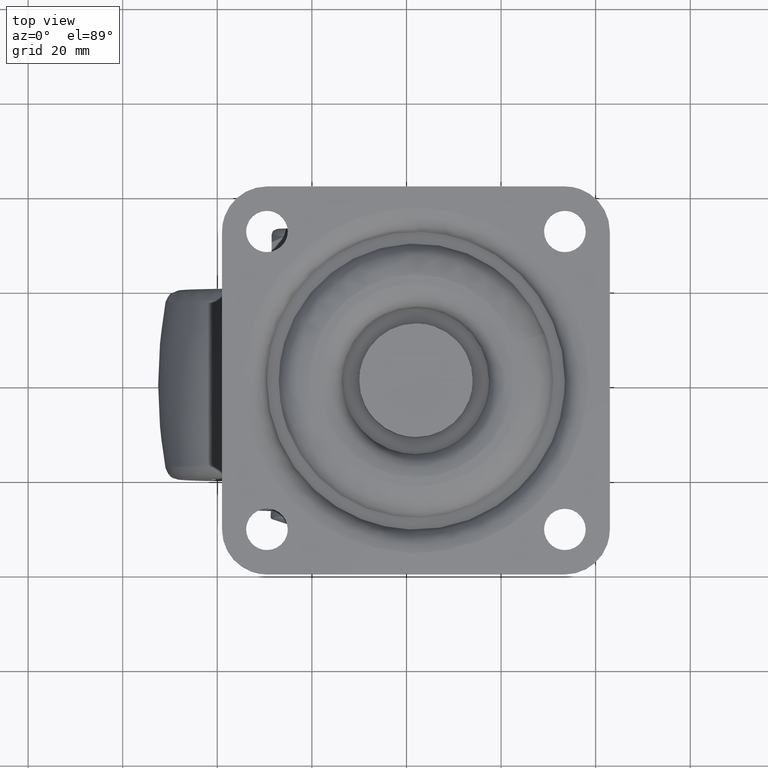
[diagram: clean part render]
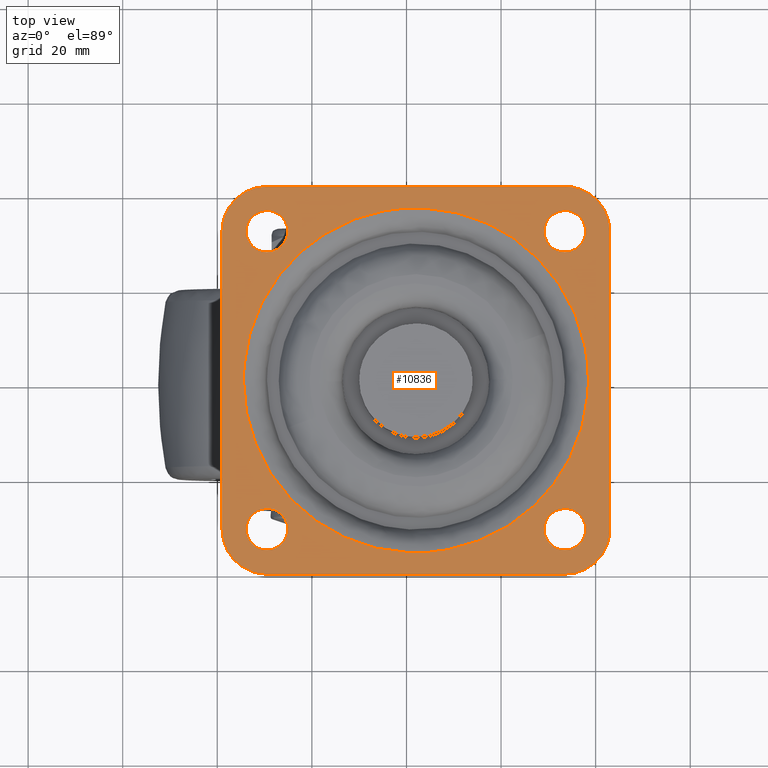
[diagram: same view with one face highlighted and labeled with its STEP entity id]
A machine part, top view. The second image highlights one B-rep face of the part: STEP entity #10836.
In plain terms, the highlighted face is a freeform B-spline surface patch.
Its self-contained STEP definition (entity closure, byte-faithful):
#9504=CARTESIAN_POINT('',(-6.527402651635682,28.255979422633239,57.500000000000007));
#9505=VERTEX_POINT('',#9504);
#9511=CARTESIAN_POINT('',(-5.099999900000237,31.500000000000000,57.500000000000000));
#9512=VERTEX_POINT('',#9511);
#9513=CARTESIAN_POINT('',(-6.527402651635682,28.255979422633239,57.500000000000007));
#9514=CARTESIAN_POINT('',(-6.331294640377301,28.435661510493610,57.499999999999972));
#9515=CARTESIAN_POINT('',(-5.907538056426722,28.901234727286791,57.500000000000000));
#9516=CARTESIAN_POINT('',(-5.476054463853685,29.646779759349990,57.500000000000071));
#9517=CARTESIAN_POINT('',(-5.172922856445772,30.550104541011748,57.499999999999829));
#9518=CARTESIAN_POINT('',(-5.099897560702185,31.139013330310519,57.500000000000057));
#9519=CARTESIAN_POINT('',(-5.099999900000237,31.500000000000000,57.500000000000000));
#9520=B_SPLINE_CURVE_WITH_KNOTS('',3,(#9513,#9514,#9515,#9516,#9517,#9518,#9519),.UNSPECIFIED.,.F.,.U.,(4,1,1,1,4),(0.000000051741890,0.797946363962236,1.880850459247144,2.564829295802321,3.647763770706989),.UNSPECIFIED.);
#9521=EDGE_CURVE('',#9505,#9512,#9520,.T.);
#9523=CARTESIAN_POINT('',(-9.500001652599385,35.900000099999687,57.500000000000007));
#9524=VERTEX_POINT('',#9523);
#9525=CARTESIAN_POINT('',(-5.099999900000237,31.500000000000000,57.500000000000000));
#9526=CARTESIAN_POINT('',(-5.099960108318770,31.805979140615388,57.500000000000057));
#9527=CARTESIAN_POINT('',(-5.164085256940187,32.417916385061382,57.500000000000057));
#9528=CARTESIAN_POINT('',(-5.475977597489463,33.382183380350618,57.500000000000028));
#9529=CARTESIAN_POINT('',(-6.038119762492743,34.294515202237591,57.499999999999787));
#9530=CARTESIAN_POINT('',(-6.878718447212923,35.094815477841607,57.500000000000327));
#9531=CARTESIAN_POINT('',(-8.024383747049235,35.725460889826692,57.499999999999801));
#9532=CARTESIAN_POINT('',(-8.959973545698887,35.900474387912098,57.500000000000099));
#9533=CARTESIAN_POINT('',(-9.500001652599385,35.900000099999687,57.500000000000007));
#9534=B_SPLINE_CURVE_WITH_KNOTS('',3,(#9525,#9526,#9527,#9528,#9529,#9530,#9531,#9532,#9533),.UNSPECIFIED.,.F.,.U.,(4,1,1,1,1,1,4),(0.000000175198451,0.917936263844392,1.835880449769610,3.023840432684590,4.103695786229096,5.291655147283606,6.911548293186638),.UNSPECIFIED.);
#9535=EDGE_CURVE('',#9512,#9524,#9534,.T.);
#9537=CARTESIAN_POINT('',(-12.472597348364779,34.744020577366761,57.500000000000007));
#9538=VERTEX_POINT('',#9537);
#9539=CARTESIAN_POINT('',(-9.500001652599385,35.900000099999687,57.500000000000007));
#9540=CARTESIAN_POINT('',(-9.805981147162260,35.900036854611727,57.499999999999993));
#9541=CARTESIAN_POINT('',(-10.451922533639070,35.832371503604193,57.499999999999972));
#9542=CARTESIAN_POINT('',(-11.490040430876730,35.483245104056628,57.500000000000043));
#9543=CARTESIAN_POINT('',(-12.146849655788129,35.042745122781888,57.500000000000057));
#9544=CARTESIAN_POINT('',(-12.472597348364779,34.744020577366761,57.500000000000007));
#9545=B_SPLINE_CURVE_WITH_KNOTS('',3,(#9539,#9540,#9541,#9542,#9543,#9544),.UNSPECIFIED.,.F.,.U.,(4,1,1,4),(0.000000019697054,0.917954336076404,1.937902899553214,3.263837451148346),.UNSPECIFIED.);
#9546=EDGE_CURVE('',#9524,#9538,#9545,.T.);
#9587=CARTESIAN_POINT('',(-13.900000100000231,31.500000000000000,57.500000000000000));
#9588=VERTEX_POINT('',#9587);
#9589=CARTESIAN_POINT('',(-12.472597348364779,34.744020577366761,57.500000000000007));
#9590=CARTESIAN_POINT('',(-12.837067715766420,34.410513536206643,57.500000000000121));
#9591=CARTESIAN_POINT('',(-13.262257174187020,33.862521040809632,57.499999999999879));
#9592=CARTESIAN_POINT('',(-13.767413569487641,32.753636528817999,57.500000000000092));
#9593=CARTESIAN_POINT('',(-13.900492629213110,32.032064973073183,57.499999999999787));
#9594=CARTESIAN_POINT('',(-13.900000100000231,31.500000000000000,57.500000000000000));
#9595=B_SPLINE_CURVE_WITH_KNOTS('',3,(#9589,#9590,#9591,#9592,#9593,#9594),.UNSPECIFIED.,.F.,.U.,(4,1,1,4),(0.000000051744217,1.481921811847685,2.051850085721132,3.647763770706988),.UNSPECIFIED.);
#9596=EDGE_CURVE('',#9538,#9588,#9595,.T.);
#9598=CARTESIAN_POINT('',(-9.499998347401077,27.099999900000309,57.500000000000007));
#9599=VERTEX_POINT('',#9598);
#9600=CARTESIAN_POINT('',(-13.900000100000231,31.500000000000000,57.500000000000000));
#9601=CARTESIAN_POINT('',(-13.900038508210120,31.194022359299819,57.499999999999957));
#9602=CARTESIAN_POINT('',(-13.832176452605850,30.546073037396081,57.500000000000078));
#9603=CARTESIAN_POINT('',(-13.531105476227150,29.653161362864829,57.499999999999879));
#9604=CARTESIAN_POINT('',(-12.982609549140021,28.737812223937802,57.500000000000163));
#9605=CARTESIAN_POINT('',(-12.300768018614860,28.056010940166331,57.500000000000000));
#9606=CARTESIAN_POINT('',(-11.427814339756869,27.510761760326780,57.500000000000149));
#9607=CARTESIAN_POINT('',(-10.543908682954539,27.182215160884091,57.499999999999282));
#9608=CARTESIAN_POINT('',(-9.841972478193476,27.099939959551140,57.500000000000639));
#9609=CARTESIAN_POINT('',(-9.499998347401077,27.099999900000309,57.500000000000007));
#9610=B_SPLINE_CURVE_WITH_KNOTS('',3,(#9600,#9601,#9602,#9603,#9604,#9605,#9606,#9607,#9608,#9609),.UNSPECIFIED.,.F.,.U.,(4,1,1,1,1,1,1,4),(0.000000175201535,0.917936263847681,1.943875115740609,2.807852763743806,4.103695786231384,4.805674773368981,5.885628581665647,6.911548293186580),.UNSPECIFIED.);
#9611=EDGE_CURVE('',#9588,#9599,#9610,.T.);
#9613=CARTESIAN_POINT('',(-9.499998347401077,27.099999900000309,57.500000000000007));
#9614=CARTESIAN_POINT('',(-9.194018285397160,27.099954732530989,57.499999999999957));
#9615=CARTESIAN_POINT('',(-8.616089572026731,27.160551807304980,57.500000000000050));
#9616=CARTESIAN_POINT('',(-7.572635545548788,27.484704218586799,57.499999999999972));
#9617=CARTESIAN_POINT('',(-6.903187015172041,27.911148581364468,57.500000000000057));
#9618=CARTESIAN_POINT('',(-6.527402651635682,28.255979422633239,57.500000000000007));
#9619=B_SPLINE_CURVE_WITH_KNOTS('',3,(#9613,#9614,#9615,#9616,#9617,#9618),.UNSPECIFIED.,.F.,.U.,(4,1,1,4),(0.000000019698521,0.917954336077539,1.733913206903915,3.263837451148340),.UNSPECIFIED.);
#9620=EDGE_CURVE('',#9599,#9505,#9619,.T.);
#9708=CARTESIAN_POINT('',(-6.527402651635683,-34.744020577366761,57.500000000000007));
#9709=VERTEX_POINT('',#9708);
#9715=CARTESIAN_POINT('',(-5.099999900000237,-31.500000000000000,57.500000000000000));
#9716=VERTEX_POINT('',#9715);
#9717=CARTESIAN_POINT('',(-6.527402651635683,-34.744020577366761,57.500000000000007));
#9718=CARTESIAN_POINT('',(-6.134825883884829,-34.384902397453651,57.500000000000107));
#9719=CARTESIAN_POINT('',(-5.657763765728388,-33.753099496375853,57.500000000000000));
#9720=CARTESIAN_POINT('',(-5.202754979582625,-32.620801731992273,57.499999999999957));
#9721=CARTESIAN_POINT('',(-5.099824440606160,-31.936993126831371,57.499999999999737));
#9722=CARTESIAN_POINT('',(-5.099999900000237,-31.500000000000000,57.500000000000000));
#9723=B_SPLINE_CURVE_WITH_KNOTS('',3,(#9717,#9718,#9719,#9720,#9721,#9722),.UNSPECIFIED.,.F.,.U.,(4,1,1,4),(0.000000051739282,1.595913736783466,2.336845261510963,3.647763770706998),.UNSPECIFIED.);
#9724=EDGE_CURVE('',#9709,#9716,#9723,.T.);
#9726=CARTESIAN_POINT('',(-9.500001652599385,-27.099999900000309,57.500000000000007));
#9727=VERTEX_POINT('',#9726);
#9728=CARTESIAN_POINT('',(-5.099999900000237,-31.500000000000000,57.500000000000000));
#9729=CARTESIAN_POINT('',(-5.099557597183056,-30.959958248699291,57.499999999999723));
#9730=CARTESIAN_POINT('',(-5.237511275531254,-30.222340694124661,57.500000000000291));
#9731=CARTESIAN_POINT('',(-5.664057894249466,-29.306509450157780,57.499999999999780));
#9732=CARTESIAN_POINT('',(-6.130115315175477,-28.617982032846129,57.500000000000277));
#9733=CARTESIAN_POINT('',(-6.826203886798327,-27.955228875915470,57.499999999999808));
#9734=CARTESIAN_POINT('',(-7.718012176028394,-27.435494138737500,57.499999999999972));
#9735=CARTESIAN_POINT('',(-8.618061325491478,-27.156450676682368,57.500000000000057));
#9736=CARTESIAN_POINT('',(-9.230024256948619,-27.099982209507559,57.500000000000007));
#9737=CARTESIAN_POINT('',(-9.500001652599385,-27.099999900000309,57.500000000000007));
#9738=B_SPLINE_CURVE_WITH_KNOTS('',3,(#9728,#9729,#9730,#9731,#9732,#9733,#9734,#9735,#9736,#9737),.UNSPECIFIED.,.F.,.U.,(4,1,1,1,1,1,1,4),(0.000000175196322,1.619892753824357,2.213869588178089,3.023840432683744,4.103695786228720,5.075667376940040,6.101607574971982,6.911548293186634),.UNSPECIFIED.);
#9739=EDGE_CURVE('',#9716,#9727,#9738,.T.);
#9741=CARTESIAN_POINT('',(-12.472597348364779,-28.255979422633239,57.500000000000007));
#9742=VERTEX_POINT('',#9741);
#9743=CARTESIAN_POINT('',(-9.500001652599385,-27.099999900000309,57.500000000000007));
#9744=CARTESIAN_POINT('',(-9.805978879384542,-27.099959323252929,57.499999999999979));
#9745=CARTESIAN_POINT('',(-10.383922556173800,-27.160533726234078,57.500000000000043));
#9746=CARTESIAN_POINT('',(-11.427335526212181,-27.484747459258489,57.499999999999957));
#9747=CARTESIAN_POINT('',(-12.096840325642470,-27.911109214048899,57.500000000000121));
#9748=CARTESIAN_POINT('',(-12.472597348364779,-28.255979422633239,57.500000000000007));
#9749=B_SPLINE_CURVE_WITH_KNOTS('',3,(#9743,#9744,#9745,#9746,#9747,#9748),.UNSPECIFIED.,.F.,.U.,(4,1,1,4),(0.000000019698709,0.917954336077656,1.733913206903981,3.263837451148342),.UNSPECIFIED.);
#9750=EDGE_CURVE('',#9727,#9742,#9749,.T.);
#9790=CARTESIAN_POINT('',(-13.900000100000231,-31.500000000000000,57.500000000000000));
#9791=VERTEX_POINT('',#9790);
#9792=CARTESIAN_POINT('',(-12.472597348364779,-28.255979422633239,57.500000000000007));
#9793=CARTESIAN_POINT('',(-12.696742629631290,-28.461314498516860,57.500000000000007));
#9794=CARTESIAN_POINT('',(-13.127571519996071,-28.947269724742029,57.500000000000007));
#9795=CARTESIAN_POINT('',(-13.544166108726710,-29.700476955939301,57.499999999999979));
#9796=CARTESIAN_POINT('',(-13.829452768861040,-30.569103800363770,57.500000000000199));
#9797=CARTESIAN_POINT('',(-13.900081831135839,-31.139015745930880,57.500000000000007));
#9798=CARTESIAN_POINT('',(-13.900000100000231,-31.500000000000000,57.500000000000000));
#9799=B_SPLINE_CURVE_WITH_KNOTS('',3,(#9792,#9793,#9794,#9795,#9796,#9797,#9798),.UNSPECIFIED.,.F.,.U.,(4,1,1,1,4),(0.000000051740050,0.911940981480604,1.937862857151539,2.564829295801952,3.647763770706989),.UNSPECIFIED.);
#9800=EDGE_CURVE('',#9742,#9791,#9799,.T.);
#9802=CARTESIAN_POINT('',(-9.499998347401073,-35.900000099999687,57.500000000000007));
#9803=VERTEX_POINT('',#9802);
#9804=CARTESIAN_POINT('',(-13.900000100000231,-31.500000000000000,57.500000000000000));
#9805=CARTESIAN_POINT('',(-13.900046339982270,-31.805979913364339,57.499999999999929));
#9806=CARTESIAN_POINT('',(-13.835912382310140,-32.417919312008600,57.500000000000149));
#9807=CARTESIAN_POINT('',(-13.546264531920770,-33.313285828740810,57.500000000000021));
#9808=CARTESIAN_POINT('',(-13.108548323292149,-34.064229105862559,57.499999999999730));
#9809=CARTESIAN_POINT('',(-12.526553293370551,-34.730612398474982,57.500000000000547));
#9810=CARTESIAN_POINT('',(-11.798534928594931,-35.298867341410570,57.499999999999467));
#9811=CARTESIAN_POINT('',(-10.759796989444251,-35.774640968031797,57.500000000000298));
#9812=CARTESIAN_POINT('',(-9.949986266179723,-35.900222447529643,57.499999999999943));
#9813=CARTESIAN_POINT('',(-9.499998347401073,-35.900000099999687,57.500000000000007));
#9814=B_SPLINE_CURVE_WITH_KNOTS('',3,(#9804,#9805,#9806,#9807,#9808,#9809,#9810,#9811,#9812,#9813),.UNSPECIFIED.,.F.,.U.,(4,1,1,1,1,1,1,4),(0.000000175198956,0.917936263844310,1.835880449768899,2.807852763740702,3.509717060336606,4.481693944132966,5.561647752064996,6.911548293186637),.UNSPECIFIED.);
#9815=EDGE_CURVE('',#9791,#9803,#9814,.T.);
#9817=CARTESIAN_POINT('',(-9.499998347401073,-35.900000099999687,57.500000000000007));
#9818=CARTESIAN_POINT('',(-9.058018572570415,-35.900168918899112,57.499999999999979));
#9819=CARTESIAN_POINT('',(-8.276167814063836,-35.781208861819152,57.500000000000142));
#9820=CARTESIAN_POINT('',(-7.274921927574757,-35.337268851585797,57.499999999999858));
#9821=CARTESIAN_POINT('',(-6.752967987963054,-34.950763000156847,57.500000000000213));
#9822=CARTESIAN_POINT('',(-6.527402651635683,-34.744020577366761,57.500000000000007));
#9823=B_SPLINE_CURVE_WITH_KNOTS('',3,(#9817,#9818,#9819,#9820,#9821,#9822),.UNSPECIFIED.,.F.,.U.,(4,1,1,4),(0.000000019698297,1.325934571258695,2.345883134763110,3.263837451148344),.UNSPECIFIED.);
#9824=EDGE_CURVE('',#9803,#9709,#9823,.T.);
#9912=CARTESIAN_POINT('',(56.472597348364552,-34.744020577366769,57.500000000000000));
#9913=VERTEX_POINT('',#9912);
#9919=CARTESIAN_POINT('',(57.900000100000000,-31.500000000000000,57.500000000000000));
#9920=VERTEX_POINT('',#9919);
#9921=CARTESIAN_POINT('',(56.472597348364552,-34.744020577366769,57.500000000000000));
#9922=CARTESIAN_POINT('',(56.738807202030443,-34.500214349525443,57.499999999999872));
#9923=CARTESIAN_POINT('',(57.160932837396579,-34.004824190541228,57.500000000000249));
#9924=CARTESIAN_POINT('',(57.606562842658882,-33.160819330669703,57.499999999999773));
#9925=CARTESIAN_POINT('',(57.848182040586678,-32.335938885675127,57.500000000000092));
#9926=CARTESIAN_POINT('',(57.900021573483230,-31.765981074456281,57.500000000000043));
#9927=CARTESIAN_POINT('',(57.900000100000000,-31.500000000000000,57.500000000000000));
#9928=B_SPLINE_CURVE_WITH_KNOTS('',3,(#9921,#9922,#9923,#9924,#9925,#9926,#9927),.UNSPECIFIED.,.F.,.U.,(4,1,1,1,4),(0.000000051738970,1.082934526687665,1.937862857152270,2.849817458499780,3.647763770706972),.UNSPECIFIED.);
#9929=EDGE_CURVE('',#9913,#9920,#9928,.T.);
#9931=CARTESIAN_POINT('',(53.499998347400840,-27.099999900000309,57.500000000000007));
#9932=VERTEX_POINT('',#9931);
#9933=CARTESIAN_POINT('',(57.900000100000000,-31.500000000000000,57.500000000000000));
#9934=CARTESIAN_POINT('',(57.900045816502143,-31.194020118935729,57.499999999999993));
#9935=CARTESIAN_POINT('',(57.835917910283932,-30.582078320998040,57.500000000000092));
#9936=CARTESIAN_POINT('',(57.574065703870168,-29.772851344300609,57.499999999999872));
#9937=CARTESIAN_POINT('',(57.100705271054167,-28.899788898169760,57.500000000000362));
#9938=CARTESIAN_POINT('',(56.432646252619278,-28.153592631767459,57.499999999999332));
#9939=CARTESIAN_POINT('',(55.526019848085603,-27.555984136205382,57.500000000000952));
#9940=CARTESIAN_POINT('',(54.579868066558191,-27.191026462654332,57.499999999999773));
#9941=CARTESIAN_POINT('',(53.877979404810937,-27.099883420977658,57.500000000000043));
#9942=CARTESIAN_POINT('',(53.499998347400840,-27.099999900000309,57.500000000000007));
#9943=B_SPLINE_CURVE_WITH_KNOTS('',3,(#9933,#9934,#9935,#9936,#9937,#9938,#9939,#9940,#9941,#9942),.UNSPECIFIED.,.F.,.U.,(4,1,1,1,1,1,1,4),(0.000000175198252,0.917936263844547,1.835880449769727,2.537847296095109,3.887708627484542,4.805674773366144,5.777636256844786,6.911548293186641),.UNSPECIFIED.);
#9944=EDGE_CURVE('',#9920,#9932,#9943,.T.);
#9946=CARTESIAN_POINT('',(50.527402651635448,-28.255979422633239,57.500000000000007));
#9947=VERTEX_POINT('',#9946);
#9948=CARTESIAN_POINT('',(53.499998347400840,-27.099999900000309,57.500000000000007));
#9949=CARTESIAN_POINT('',(53.126008796483532,-27.099875764320782,57.500000000000050));
#9950=CARTESIAN_POINT('',(52.548127661693123,-27.174179613081868,57.499999999999993));
#9951=CARTESIAN_POINT('',(51.514432882039181,-27.521827589460020,57.500000000000078));
#9952=CARTESIAN_POINT('',(50.903167895852903,-27.911107979100361,57.499999999999950));
#9953=CARTESIAN_POINT('',(50.527402651635448,-28.255979422633239,57.500000000000007));
#9954=B_SPLINE_CURVE_WITH_KNOTS('',3,(#9948,#9949,#9950,#9951,#9952,#9953),.UNSPECIFIED.,.F.,.U.,(4,1,1,4),(0.000000019700186,1.121944440149901,1.733913206904668,3.263837451148310),.UNSPECIFIED.);
#9955=EDGE_CURVE('',#9932,#9947,#9954,.T.);
#9995=CARTESIAN_POINT('',(49.099999900000000,-31.500000000000000,57.500000000000000));
#9996=VERTEX_POINT('',#9995);
#9997=CARTESIAN_POINT('',(50.527402651635448,-28.255979422633239,57.500000000000007));
#9998=CARTESIAN_POINT('',(50.261198521250982,-28.499793785990001,57.500000000000007));
#9999=CARTESIAN_POINT('',(49.876315201401113,-28.951474278974491,57.500000000000028));
#10000=CARTESIAN_POINT('',(49.461305597709540,-29.701891549309671,57.499999999999993));
#10001=CARTESIAN_POINT('',(49.177607561903329,-30.512118395695669,57.500000000000021));
#10002=CARTESIAN_POINT('',(49.099903004929452,-31.139014873224522,57.500000000000028));
#10003=CARTESIAN_POINT('',(49.099999900000000,-31.500000000000000,57.500000000000000));
#10004=B_SPLINE_CURVE_WITH_KNOTS('',3,(#9997,#9998,#9999,#10000,#10001,#10002,#10003),.UNSPECIFIED.,.F.,.U.,(4,1,1,1,4),(0.000000051739248,1.082934526687299,1.766913363232705,2.564829295801737,3.647763770707020),.UNSPECIFIED.);
#10005=EDGE_CURVE('',#9947,#9996,#10004,.T.);
#10007=CARTESIAN_POINT('',(53.500001652599160,-35.900000099999687,57.500000000000000));
#10008=VERTEX_POINT('',#10007);
#10009=CARTESIAN_POINT('',(49.099999900000000,-31.500000000000000,57.500000000000000));
#10010=CARTESIAN_POINT('',(49.099845914160277,-31.913984795733771,57.499999999999893));
#10011=CARTESIAN_POINT('',(49.197261107594763,-32.597843507224852,57.500000000000099));
#10012=CARTESIAN_POINT('',(49.534368682123691,-33.455823668517702,57.499999999999893));
#10013=CARTESIAN_POINT('',(50.031211769289357,-34.273744304837450,57.500000000000107));
#10014=CARTESIAN_POINT('',(50.799073811221056,-35.051089873964848,57.499999999999822));
#10015=CARTESIAN_POINT('',(52.024375648844902,-35.725453804875897,57.500000000000043));
#10016=CARTESIAN_POINT('',(52.959982209665483,-35.900472784731242,57.499999999999957));
#10017=CARTESIAN_POINT('',(53.500001652599160,-35.900000099999687,57.500000000000000));
#10018=B_SPLINE_CURVE_WITH_KNOTS('',3,(#10009,#10010,#10011,#10012,#10013,#10014,#10015,#10016,#10017),.UNSPECIFIED.,.F.,.U.,(4,1,1,1,1,1,4),(0.000000175204129,1.241908470281501,2.051870935937797,2.753822092302106,4.103695786231374,5.291655147285097,6.911548293186583),.UNSPECIFIED.);
#10019=EDGE_CURVE('',#9996,#10008,#10018,.T.);
#10021=CARTESIAN_POINT('',(53.500001652599160,-35.900000099999687,57.500000000000000));
#10022=CARTESIAN_POINT('',(53.941993552615557,-35.900221045391767,57.499999999999922));
#10023=CARTESIAN_POINT('',(54.723813768862406,-35.781149511236137,57.500000000000142));
#10024=CARTESIAN_POINT('',(55.725084978997359,-35.337286507267812,57.499999999999829));
#10025=CARTESIAN_POINT('',(56.247030988644063,-34.950761826268590,57.500000000000107));
#10026=CARTESIAN_POINT('',(56.472597348364552,-34.744020577366769,57.500000000000000));
#10027=B_SPLINE_CURVE_WITH_KNOTS('',3,(#10021,#10022,#10023,#10024,#10025,#10026),.UNSPECIFIED.,.F.,.U.,(4,1,1,4),(0.000000019698689,1.325934571258694,2.345883134763088,3.263837451148335),.UNSPECIFIED.);
#10028=EDGE_CURVE('',#10008,#9913,#10027,.T.);
#10115=CARTESIAN_POINT('',(56.472597348364552,28.255979422633239,57.500000000000000));
#10116=VERTEX_POINT('',#10115);
#10122=CARTESIAN_POINT('',(57.900000100000000,31.500000000000000,57.500000000000000));
#10123=VERTEX_POINT('',#10122);
#10124=CARTESIAN_POINT('',(56.472597348364552,28.255979422633239,57.500000000000000));
#10125=CARTESIAN_POINT('',(56.724779401922127,28.486967188804542,57.500000000000043));
#10126=CARTESIAN_POINT('',(57.174826236211729,29.008142960600800,57.499999999999993));
#10127=CARTESIAN_POINT('',(57.739501266144011,30.094360930252940,57.500000000000263));
#10128=CARTESIAN_POINT('',(57.900437957780561,30.967966389365689,57.499999999999673));
#10129=CARTESIAN_POINT('',(57.900000100000000,31.500000000000000,57.500000000000000));
#10130=B_SPLINE_CURVE_WITH_KNOTS('',3,(#10124,#10125,#10126,#10127,#10128,#10129),.UNSPECIFIED.,.F.,.U.,(4,1,1,4),(0.000000051741889,1.025935599016822,2.051850085720654,3.647763770706995),.UNSPECIFIED.);
#10131=EDGE_CURVE('',#10116,#10123,#10130,.T.);
#10133=CARTESIAN_POINT('',(53.499998347400847,35.900000099999687,57.500000000000007));
#10134=VERTEX_POINT('',#10133);
#10135=CARTESIAN_POINT('',(57.900000100000000,31.500000000000000,57.500000000000000));
#10136=CARTESIAN_POINT('',(57.900046474164128,31.805979855540819,57.499999999999972));
#10137=CARTESIAN_POINT('',(57.835912057499193,32.417919604945297,57.500000000000057));
#10138=CARTESIAN_POINT('',(57.546262565356123,33.313282580604273,57.499999999999837));
#10139=CARTESIAN_POINT('',(57.108539207995634,34.064216822712297,57.500000000000249));
#10140=CARTESIAN_POINT('',(56.455368107296287,34.812321213016268,57.500000000000092));
#10141=CARTESIAN_POINT('',(55.644377745645407,35.398498401417051,57.500000000000078));
#10142=CARTESIAN_POINT('',(54.579861020503017,35.808962238325947,57.499999999999822));
#10143=CARTESIAN_POINT('',(53.877978968599187,35.900116338619299,57.500000000000597));
#10144=CARTESIAN_POINT('',(53.499998347400847,35.900000099999687,57.500000000000007));
#10145=B_SPLINE_CURVE_WITH_KNOTS('',3,(#10135,#10136,#10137,#10138,#10139,#10140,#10141,#10142,#10143,#10144),.UNSPECIFIED.,.F.,.U.,(4,1,1,1,1,1,1,4),(0.000000175200198,0.917936263845691,1.835880449771367,2.807852763743747,3.509717060339875,4.805674773369589,5.777636256847112,6.911548293186582),.UNSPECIFIED.);
#10146=EDGE_CURVE('',#10123,#10134,#10145,.T.);
#10148=CARTESIAN_POINT('',(50.527402651635448,34.744020577366769,57.500000000000000));
#10149=VERTEX_POINT('',#10148);
#10150=CARTESIAN_POINT('',(53.499998347400847,35.900000099999687,57.500000000000007));
#10151=CARTESIAN_POINT('',(53.194015464828809,35.900045020618528,57.500000000000007));
#10152=CARTESIAN_POINT('',(52.616091493557583,35.839447989040309,57.500000000000021));
#10153=CARTESIAN_POINT('',(51.572634337080721,35.515296140098627,57.500000000000043));
#10154=CARTESIAN_POINT('',(50.903186968958813,35.088850775180390,57.499999999999993));
#10155=CARTESIAN_POINT('',(50.527402651635448,34.744020577366769,57.500000000000000));
#10156=B_SPLINE_CURVE_WITH_KNOTS('',3,(#10150,#10151,#10152,#10153,#10154,#10155),.UNSPECIFIED.,.F.,.U.,(4,1,1,4),(0.000000019698849,0.917954336077656,1.733913206904028,3.263837451148345),.UNSPECIFIED.);
#10157=EDGE_CURVE('',#10134,#10149,#10156,.T.);
#10197=CARTESIAN_POINT('',(49.099999900000000,31.500000000000000,57.500000000000000));
#10198=VERTEX_POINT('',#10197);
#10199=CARTESIAN_POINT('',(50.527402651635448,34.744020577366769,57.500000000000000));
#10200=CARTESIAN_POINT('',(50.331296885063921,34.564335235205178,57.500000000000078));
#10201=CARTESIAN_POINT('',(49.894693033056207,34.084666099067583,57.499999999999858));
#10202=CARTESIAN_POINT('',(49.287291831938802,33.019517927342093,57.500000000000362));
#10203=CARTESIAN_POINT('',(49.099380517187228,32.070060719745037,57.499999999999631));
#10204=CARTESIAN_POINT('',(49.099999900000000,31.500000000000000,57.500000000000000));
#10205=B_SPLINE_CURVE_WITH_KNOTS('',3,(#10199,#10200,#10201,#10202,#10203,#10204),.UNSPECIFIED.,.F.,.U.,(4,1,1,4),(0.000000051735559,0.797946363958281,1.937862857151007,3.647763770707026),.UNSPECIFIED.);
#10206=EDGE_CURVE('',#10149,#10198,#10205,.T.);
#10208=CARTESIAN_POINT('',(53.500001652599160,27.099999900000309,57.500000000000000));
#10209=VERTEX_POINT('',#10208);
#10210=CARTESIAN_POINT('',(49.099999900000000,31.500000000000000,57.500000000000000));
#10211=CARTESIAN_POINT('',(49.099961305887170,31.194023682409650,57.500000000000092));
#10212=CARTESIAN_POINT('',(49.171584993603467,30.510066577057870,57.499999999999858));
#10213=CARTESIAN_POINT('',(49.483985301012673,29.619561161073118,57.500000000000419));
#10214=CARTESIAN_POINT('',(49.939002752589559,28.881390967808539,57.499999999999247));
#10215=CARTESIAN_POINT('',(50.473446297688511,28.269387038792871,57.500000000000661));
#10216=CARTESIAN_POINT('',(51.201463037147448,27.701131312797379,57.499999999999467));
#10217=CARTESIAN_POINT('',(52.240204430053630,27.225360044903539,57.500000000000391));
#10218=CARTESIAN_POINT('',(53.050013392389467,27.099777092993900,57.499999999999908));
#10219=CARTESIAN_POINT('',(53.500001652599160,27.099999900000309,57.500000000000000));
#10220=B_SPLINE_CURVE_WITH_KNOTS('',3,(#10210,#10211,#10212,#10213,#10214,#10215,#10216,#10217,#10218,#10219),.UNSPECIFIED.,.F.,.U.,(4,1,1,1,1,1,1,4),(0.000000175189395,0.917936263836616,2.051870935928541,2.807852763736344,3.509717060333504,4.481693944131093,5.561647752064452,6.911548293186643),.UNSPECIFIED.);
#10221=EDGE_CURVE('',#10198,#10209,#10220,.T.);
#10223=CARTESIAN_POINT('',(53.500001652599160,27.099999900000309,57.500000000000000));
#10224=CARTESIAN_POINT('',(53.941998051397768,27.099779295037880,57.499999999999957));
#10225=CARTESIAN_POINT('',(54.723810257059228,27.218849707412840,57.499999999999943));
#10226=CARTESIAN_POINT('',(55.725087558830189,27.662714926055980,57.500000000000142));
#10227=CARTESIAN_POINT('',(56.247029145682284,28.049236838815421,57.499999999999901));
#10228=CARTESIAN_POINT('',(56.472597348364552,28.255979422633239,57.500000000000000));
#10229=B_SPLINE_CURVE_WITH_KNOTS('',3,(#10223,#10224,#10225,#10226,#10227,#10228),.UNSPECIFIED.,.F.,.U.,(4,1,1,4),(0.000000019697363,1.325934571258371,2.345883134763223,3.263837451148334),.UNSPECIFIED.);
#10230=EDGE_CURVE('',#10209,#10116,#10229,.T.);
#10536=CARTESIAN_POINT('',(-14.333910820798540,3.204366875902156,57.500000000000000));
#10537=VERTEX_POINT('',#10536);
#10551=CARTESIAN_POINT('',(-14.474937185532850,2.842171E-014,57.500000000000000));
#10552=VERTEX_POINT('',#10551);
#10553=CARTESIAN_POINT('',(-14.474937185532850,2.842171E-014,57.500000000000000));
#10554=CARTESIAN_POINT('',(-14.474943698209371,1.069500781874146,57.500000000000043));
#10555=CARTESIAN_POINT('',(-14.427876337802530,2.139002087294191,57.499999999999851));
#10556=CARTESIAN_POINT('',(-14.333910820798540,3.204366875902156,57.500000000000000));
#10557=B_SPLINE_CURVE_WITH_KNOTS('',3,(#10553,#10554,#10555,#10556),.UNSPECIFIED.,.F.,.U.,(4,4),(1.846039E-010,3.208507092495665),.UNSPECIFIED.);
#10558=EDGE_CURVE('',#10552,#10537,#10557,.T.);
#10560=CARTESIAN_POINT('',(20.396377907495388,-36.439668479162471,57.500000000000000));
#10561=VERTEX_POINT('',#10560);
#10562=CARTESIAN_POINT('',(20.396377907495388,-36.439668479162471,57.500000000000000));
#10563=CARTESIAN_POINT('',(19.019948818281510,-36.379125060956483,57.500000000000007));
#10564=CARTESIAN_POINT('',(16.129450327531529,-36.087204730805631,57.499999999999929));
#10565=CARTESIAN_POINT('',(11.520531980623520,-35.057036120495667,57.499999999999901));
#10566=CARTESIAN_POINT('',(6.478995333482709,-33.176172806394817,57.500000000000767));
#10567=CARTESIAN_POINT('',(1.539758603503014,-30.379902206716260,57.499999999999417));
#10568=CARTESIAN_POINT('',(-2.724047655167358,-26.979539761327992,57.500000000000753));
#10569=CARTESIAN_POINT('',(-6.019332195474542,-23.494599911863169,57.499999999998899));
#10570=CARTESIAN_POINT('',(-8.432497526686792,-20.220559375263971,57.500000000001172));
#10571=CARTESIAN_POINT('',(-10.574616190006770,-16.596252534011551,57.499999999998117));
#10572=CARTESIAN_POINT('',(-12.313772742923479,-12.675377414580639,57.500000000000583));
#10573=CARTESIAN_POINT('',(-13.482964027907110,-8.703228856606321,57.499999999999623));
#10574=CARTESIAN_POINT('',(-14.269059216418571,-4.568323724230450,57.500000000000519));
#10575=CARTESIAN_POINT('',(-14.475035927701891,-1.812847296092114,57.500000000000597));
#10576=CARTESIAN_POINT('',(-14.474937185532850,2.842171E-014,57.500000000000000));
#10577=B_SPLINE_CURVE_WITH_KNOTS('',3,(#10562,#10563,#10564,#10565,#10566,#10567,#10568,#10569,#10570,#10571,#10572,#10573,#10574,#10575,#10576),.UNSPECIFIED.,.F.,.U.,(4,1,1,1,1,1,1,1,1,1,1,1,4),(0.000000059310658,4.133284879721259,8.701642365987802,14.140203205623930,20.231368752585489,25.669952994854810,30.455814753901890,34.589107532704837,37.852228829990857,43.073235783092642,47.424084351005021,50.252114591381002,55.690640734361473),.UNSPECIFIED.);
#10578=EDGE_CURVE('',#10561,#10552,#10577,.T.);
#10580=CARTESIAN_POINT('',(58.333910820799026,-3.204366875902097,57.500000000000000));
#10581=VERTEX_POINT('',#10580);
#10582=CARTESIAN_POINT('',(58.333910820799026,-3.204366875902097,57.500000000000000));
#10583=CARTESIAN_POINT('',(58.155680313180312,-5.226900308325480,57.500000000000021));
#10584=CARTESIAN_POINT('',(57.522261088995023,-8.883530983254063,57.500000000000007));
#10585=CARTESIAN_POINT('',(55.719816534947967,-14.258748008676420,57.499999999999993));
#10586=CARTESIAN_POINT('',(53.070457288567532,-19.440694186977481,57.499999999999893));
#10587=CARTESIAN_POINT('',(49.754381398845680,-23.870031482548988,57.499999999999922));
#10588=CARTESIAN_POINT('',(46.044213729412618,-27.555257883202540,57.499999999999858));
#10589=CARTESIAN_POINT('',(42.475387803056591,-30.306840552174162,57.500000000000078));
#10590=CARTESIAN_POINT('',(38.586192546959843,-32.578101826958957,57.500000000000050));
#10591=CARTESIAN_POINT('',(34.992777694498422,-34.149614896308279,57.500000000000007));
#10592=CARTESIAN_POINT('',(31.053707942912570,-35.415296151490047,57.499999999999943));
#10593=CARTESIAN_POINT('',(26.278614350517341,-36.371195553326778,57.500000000000078));
#10594=CARTESIAN_POINT('',(22.497231606378250,-36.532311972168841,57.499999999999957));
#10595=CARTESIAN_POINT('',(20.396377907495388,-36.439668479162471,57.500000000000000));
#10596=B_SPLINE_CURVE_WITH_KNOTS('',3,(#10582,#10583,#10584,#10585,#10586,#10587,#10588,#10589,#10590,#10591,#10592,#10593,#10594,#10595),.UNSPECIFIED.,.F.,.U.,(4,1,1,1,1,1,1,1,1,1,1,4),(0.000000059263236,6.091108038763466,11.094564069829589,16.968177576807399,23.494404719159679,27.627708557561700,32.631068718845043,36.981916315719829,41.115190543069332,44.378303178432958,49.381749061736649,55.690415992252532),.UNSPECIFIED.);
#10597=EDGE_CURVE('',#10581,#10561,#10596,.T.);
#10646=CARTESIAN_POINT('',(58.474937185533349,2.842171E-014,57.500000000000000));
#10647=VERTEX_POINT('',#10646);
#10648=CARTESIAN_POINT('',(58.474937185533349,2.842171E-014,57.500000000000000));
#10649=CARTESIAN_POINT('',(58.474945822949792,-1.069500655033389,57.500000000000149));
#10650=CARTESIAN_POINT('',(58.427874232421352,-2.139001774282914,57.499999999999950));
#10651=CARTESIAN_POINT('',(58.333910820799026,-3.204366875902097,57.500000000000000));
#10652=B_SPLINE_CURVE_WITH_KNOTS('',3,(#10648,#10649,#10650,#10651),.UNSPECIFIED.,.F.,.U.,(4,4),(1.846234E-010,3.208507092495661),.UNSPECIFIED.);
#10653=EDGE_CURVE('',#10647,#10581,#10652,.T.);
#10655=CARTESIAN_POINT('',(23.603622092505081,36.439668479162528,57.500000000000000));
#10656=VERTEX_POINT('',#10655);
#10657=CARTESIAN_POINT('',(23.603622092505081,36.439668479162528,57.500000000000000));
#10658=CARTESIAN_POINT('',(24.980050627665200,36.379121702918262,57.500000000000078));
#10659=CARTESIAN_POINT('',(27.942824117885952,36.079932142235442,57.499999999999858));
#10660=CARTESIAN_POINT('',(31.769902833701551,35.212451530074823,57.500000000000050));
#10661=CARTESIAN_POINT('',(35.824199669652181,33.836106295973977,57.500000000000213));
#10662=CARTESIAN_POINT('',(39.380031975887917,32.172447945620647,57.500000000000270));
#10663=CARTESIAN_POINT('',(43.317421417076652,29.704561371056180,57.499999999999567));
#10664=CARTESIAN_POINT('',(46.710780814233523,26.965243239923339,57.500000000000107));
#10665=CARTESIAN_POINT('',(49.473047113669352,24.078624087677088,57.500000000000021));
#10666=CARTESIAN_POINT('',(52.079858221242361,20.774710916176581,57.500000000000007));
#10667=CARTESIAN_POINT('',(54.378171938132283,17.065050016986049,57.499999999999957));
#10668=CARTESIAN_POINT('',(56.558317798832881,12.069792433957391,57.500000000000263));
#10669=CARTESIAN_POINT('',(58.084906056374031,6.453644199033131,57.499999999999083));
#10670=CARTESIAN_POINT('',(58.475168043743011,2.247933359506404,57.500000000001080));
#10671=CARTESIAN_POINT('',(58.474937185533349,2.842171E-014,57.500000000000000));
#10672=B_SPLINE_CURVE_WITH_KNOTS('',3,(#10657,#10658,#10659,#10660,#10661,#10662,#10663,#10664,#10665,#10666,#10667,#10668,#10669,#10670,#10671),.UNSPECIFIED.,.F.,.U.,(4,1,1,1,1,1,1,1,1,1,1,1,4),(0.000000059428828,4.133284879831180,8.919195997985518,11.747236141305869,16.968246053037198,20.666477709707578,25.669952994922951,30.020689222177111,32.631200403252947,38.287302629841349,43.073235783121333,48.946880051408392,55.690640734361153),.UNSPECIFIED.);
#10673=EDGE_CURVE('',#10656,#10647,#10672,.T.);
#10675=CARTESIAN_POINT('',(-14.333910820798540,3.204366875902156,57.500000000000000));
#10676=CARTESIAN_POINT('',(-14.117683582357710,5.660354324286978,57.499999999999872));
#10677=CARTESIAN_POINT('',(-13.348814576202800,9.668909757573578,57.500000000000007));
#10678=CARTESIAN_POINT('',(-11.498075226963760,14.640495839327560,57.500000000000000));
#10679=CARTESIAN_POINT('',(-9.547879811422851,18.454633024884611,57.499999999999993));
#10680=CARTESIAN_POINT('',(-7.068478112437482,22.214588816813571,57.500000000000021));
#10681=CARTESIAN_POINT('',(-3.484132411203166,26.324918742791500,57.499999999999922));
#10682=CARTESIAN_POINT('',(0.728497833555995,29.798872810885712,57.500000000000050));
#10683=CARTESIAN_POINT('',(5.711524581442432,32.789233770283872,57.500000000000021));
#10684=CARTESIAN_POINT('',(10.691549765642311,34.844505501242850,57.500000000000000));
#10685=CARTESIAN_POINT('',(16.920146027918111,36.305265889165213,57.499999999999972));
#10686=CARTESIAN_POINT('',(21.140547756959212,36.548392932643040,57.500000000000028));
#10687=CARTESIAN_POINT('',(23.603622092505081,36.439668479162528,57.500000000000000));
#10688=B_SPLINE_CURVE_WITH_KNOTS('',3,(#10675,#10676,#10677,#10678,#10679,#10680,#10681,#10682,#10683,#10684,#10685,#10686,#10687),.UNSPECIFIED.,.F.,.U.,(4,1,1,1,1,1,1,1,1,1,4),(0.000000059269354,7.396382808287150,12.182277617283180,15.880479058545260,20.231287108094261,25.669849402188991,32.196007633432806,36.546814655474172,43.073061959034007,48.294058461449147,55.690415992252483),.UNSPECIFIED.);
#10689=EDGE_CURVE('',#10537,#10656,#10688,.T.);
#10697=CARTESIAN_POINT('',(-23.095899841068348,45.095899841068089,57.500000000000000));
#10698=CARTESIAN_POINT('',(67.095902040479501,45.095899841068089,57.500000000000000));
#10699=CARTESIAN_POINT('',(-23.095899841068348,-45.095902040479480,57.500000000000000));
#10700=CARTESIAN_POINT('',(67.095902040479501,-45.095902040479480,57.500000000000000));
#10701=B_SPLINE_SURFACE_WITH_KNOTS('',1,1,((#10697,#10699),(#10698,#10700)),.UNSPECIFIED.,.F.,.F.,.U.,(2,2),(2,2),(0.0,90.191801881547860),(0.0,90.191801881547576),.UNSPECIFIED.);
#10702=CARTESIAN_POINT('',(53.499997015487097,41.0,57.500000000000000));
#10703=VERTEX_POINT('',#10702);
#10704=CARTESIAN_POINT('',(-9.500002984513122,41.0,57.500000000000000));
#10705=VERTEX_POINT('',#10704);
#10706=CARTESIAN_POINT('',(53.499997015487097,41.0,57.500000000000000));
#10707=CARTESIAN_POINT('',(-9.500002984513122,41.0,57.500000000000000));
#10708=QUASI_UNIFORM_CURVE('',1,(#10706,#10707),.UNSPECIFIED.,.F.,.U.);
#10709=EDGE_CURVE('',#10703,#10705,#10708,.T.);
#10710=ORIENTED_EDGE('',*,*,#10709,.T.);
#10711=CARTESIAN_POINT('',(-19.000000000000249,31.500000000000000,57.500000000000000));
#10712=VERTEX_POINT('',#10711);
#10713=CARTESIAN_POINT('',(-9.500002984513122,41.0,57.500000000000000));
#10714=CARTESIAN_POINT('',(-10.160638765161609,41.000095061747842,57.499999999999950));
#10715=CARTESIAN_POINT('',(-11.443001703074810,40.865689422414142,57.500000000000099));
#10716=CARTESIAN_POINT('',(-13.453247397262990,40.229026990729977,57.500000000000043));
#10717=CARTESIAN_POINT('',(-15.139869438057540,39.232195722563127,57.499999999999837));
#10718=CARTESIAN_POINT('',(-16.374850609471959,38.098597932900880,57.500000000000199));
#10719=CARTESIAN_POINT('',(-17.320132810806069,36.961168611107531,57.499999999999957));
#10720=CARTESIAN_POINT('',(-18.223712726735869,35.454049240690239,57.499999999999858));
#10721=CARTESIAN_POINT('',(-18.862282743602389,33.520763874095792,57.500000000000092));
#10722=CARTESIAN_POINT('',(-19.000055055613991,32.121762937119627,57.499999999999957));
#10723=CARTESIAN_POINT('',(-19.000000000000249,31.500000000000000,57.500000000000000));
#10724=B_SPLINE_CURVE_WITH_KNOTS('',3,(#10713,#10714,#10715,#10716,#10717,#10718,#10719,#10720,#10721,#10722,#10723),.UNSPECIFIED.,.F.,.U.,(4,1,1,1,1,1,1,1,4),(0.000000118886732,1.981899629871895,3.847249573064961,6.295500209578604,7.811029770677507,8.860291317214031,10.725657160620800,13.057352825712529,14.922657055186690),.UNSPECIFIED.);
#10725=EDGE_CURVE('',#10705,#10712,#10724,.T.);
#10726=ORIENTED_EDGE('',*,*,#10725,.T.);
#10727=CARTESIAN_POINT('',(-19.000000000000249,-31.500000000000000,57.500000000000000));
#10728=VERTEX_POINT('',#10727);
#10729=CARTESIAN_POINT('',(-19.000000000000249,31.500000000000000,57.500000000000000));
#10730=CARTESIAN_POINT('',(-19.000000000000249,-31.500000000000000,57.500000000000000));
#10731=QUASI_UNIFORM_CURVE('',1,(#10729,#10730),.UNSPECIFIED.,.F.,.U.);
#10732=EDGE_CURVE('',#10712,#10728,#10731,.T.);
#10733=ORIENTED_EDGE('',*,*,#10732,.T.);
#10734=CARTESIAN_POINT('',(-9.500003316125062,-40.999999999999297,57.500000000000000));
#10735=VERTEX_POINT('',#10734);
#10736=CARTESIAN_POINT('',(-19.000000000000249,-31.500000000000000,57.500000000000000));
#10737=CARTESIAN_POINT('',(-19.000023566457539,-32.005186572896903,57.500000000000099));
#10738=CARTESIAN_POINT('',(-18.909937059680349,-33.132148922934057,57.499999999999829));
#10739=CARTESIAN_POINT('',(-18.422417571433289,-34.982397392433917,57.500000000000242));
#10740=CARTESIAN_POINT('',(-17.556897259669888,-36.650630378057379,57.499999999999893));
#10741=CARTESIAN_POINT('',(-16.412367200689019,-38.080405043036542,57.500000000000043));
#10742=CARTESIAN_POINT('',(-15.162127495679950,-39.199721702346473,57.500000000000057));
#10743=CARTESIAN_POINT('',(-13.454032846854981,-40.223682980279690,57.499999999999652));
#10744=CARTESIAN_POINT('',(-11.520778624142650,-40.862307621315317,57.500000000000988));
#10745=CARTESIAN_POINT('',(-10.121762797438050,-41.000044721557479,57.499999999998813));
#10746=CARTESIAN_POINT('',(-9.500003316125062,-40.999999999999297,57.500000000000000));
#10747=B_SPLINE_CURVE_WITH_KNOTS('',3,(#10736,#10737,#10738,#10739,#10740,#10741,#10742,#10743,#10744,#10745,#10746),.UNSPECIFIED.,.F.,.U.,(4,1,1,1,1,1,1,1,4),(0.000000118937882,1.515572966815855,3.380909432141337,5.712590343798015,7.111627349578711,8.860291206210192,10.725657026316140,13.057352662171899,14.922656868283010),.UNSPECIFIED.);
#10748=EDGE_CURVE('',#10728,#10735,#10747,.T.);
#10749=ORIENTED_EDGE('',*,*,#10748,.T.);
#10750=CARTESIAN_POINT('',(53.500000000000000,-41.0,57.500000000000000));
#10751=VERTEX_POINT('',#10750);
#10752=CARTESIAN_POINT('',(-9.500003316125062,-40.999999999999297,57.500000000000000));
#10753=CARTESIAN_POINT('',(53.500000000000000,-41.0,57.500000000000000));
#10754=QUASI_UNIFORM_CURVE('',1,(#10752,#10753),.UNSPECIFIED.,.F.,.U.);
#10755=EDGE_CURVE('',#10735,#10751,#10754,.T.);
#10756=ORIENTED_EDGE('',*,*,#10755,.T.);
#10757=CARTESIAN_POINT('',(63.0,-31.499996683874201,57.500000000000000));
#10758=VERTEX_POINT('',#10757);
#10759=CARTESIAN_POINT('',(53.500000000000000,-41.0,57.500000000000000));
#10760=CARTESIAN_POINT('',(54.005184895179312,-41.000022292383967,57.500000000000043));
#10761=CARTESIAN_POINT('',(55.132164285117717,-40.909954129406223,57.500000000000007));
#10762=CARTESIAN_POINT('',(56.566976543259052,-40.531762996467862,57.500000000000028));
#10763=CARTESIAN_POINT('',(58.029773034505403,-39.894070143446683,57.500000000000000));
#10764=CARTESIAN_POINT('',(59.481395911437637,-38.974954962560638,57.500000000000028));
#10765=CARTESIAN_POINT('',(60.845307570166653,-37.627677531144997,57.500000000000021));
#10766=CARTESIAN_POINT('',(61.993839055682507,-35.908785851134553,57.500000000000043));
#10767=CARTESIAN_POINT('',(62.793477344429157,-33.909292039215089,57.499999999999957));
#10768=CARTESIAN_POINT('',(63.000215780762517,-32.316085976271737,57.500000000000057));
#10769=CARTESIAN_POINT('',(63.0,-31.499996683874201,57.500000000000000));
#10770=B_SPLINE_CURVE_WITH_KNOTS('',3,(#10759,#10760,#10761,#10762,#10763,#10764,#10765,#10766,#10767,#10768,#10769),.UNSPECIFIED.,.F.,.U.,(4,1,1,1,1,1,1,1,4),(0.000000117793009,1.515573345891804,3.380910278056030,4.430176378684498,6.295501704802261,8.510559605745504,10.142742528118941,12.474432066615480,14.922660606353279),.UNSPECIFIED.);
#10771=EDGE_CURVE('',#10751,#10758,#10770,.T.);
#10772=ORIENTED_EDGE('',*,*,#10771,.T.);
#10773=CARTESIAN_POINT('',(63.0,31.500000000000000,57.500000000000000));
#10774=VERTEX_POINT('',#10773);
#10775=CARTESIAN_POINT('',(63.0,-31.499996683874201,57.500000000000000));
#10776=CARTESIAN_POINT('',(63.0,31.500000000000000,57.500000000000000));
#10777=QUASI_UNIFORM_CURVE('',1,(#10775,#10776),.UNSPECIFIED.,.F.,.U.);
#10778=EDGE_CURVE('',#10758,#10774,#10777,.T.);
#10779=ORIENTED_EDGE('',*,*,#10778,.T.);
#10780=CARTESIAN_POINT('',(63.0,31.500000000000000,57.500000000000000));
#10781=CARTESIAN_POINT('',(63.000205260374230,32.277225285712483,57.500000000000092));
#10782=CARTESIAN_POINT('',(62.827321653459670,33.676128569609659,57.500000000000021));
#10783=CARTESIAN_POINT('',(62.235340884311817,35.330579094169678,57.499999999999922));
#10784=CARTESIAN_POINT('',(61.474439390989190,36.733253663618122,57.500000000000227));
#10785=CARTESIAN_POINT('',(60.434223474526199,38.100699139914227,57.499999999999773));
#10786=CARTESIAN_POINT('',(59.093995945223853,39.242476602407777,57.500000000000313));
#10787=CARTESIAN_POINT('',(57.681120803025273,40.065722772719901,57.499999999999638));
#10788=CARTESIAN_POINT('',(55.947997945999141,40.771503288726407,57.500000000000512));
#10789=CARTESIAN_POINT('',(54.471571890087823,41.000430439978942,57.499999999999687));
#10790=CARTESIAN_POINT('',(53.499997015487097,41.0,57.500000000000000));
#10791=B_SPLINE_CURVE_WITH_KNOTS('',3,(#10780,#10781,#10782,#10783,#10784,#10785,#10786,#10787,#10788,#10789,#10790),.UNSPECIFIED.,.F.,.U.,(4,1,1,1,1,1,1,1,4),(0.000000117841068,2.331644423118124,4.196999877582179,5.246251954517293,7.111629041714134,9.326634917381306,10.492485346536590,12.008091062423150,14.922660419449500),.UNSPECIFIED.);
#10792=EDGE_CURVE('',#10774,#10703,#10791,.T.);
#10793=ORIENTED_EDGE('',*,*,#10792,.T.);
#10794=EDGE_LOOP('',(#10710,#10726,#10733,#10749,#10756,#10772,#10779,#10793));
#10795=FACE_OUTER_BOUND('',#10794,.T.);
#10796=ORIENTED_EDGE('',*,*,#10558,.T.);
#10797=ORIENTED_EDGE('',*,*,#10689,.T.);
#10798=ORIENTED_EDGE('',*,*,#10673,.T.);
#10799=ORIENTED_EDGE('',*,*,#10653,.T.);
#10800=ORIENTED_EDGE('',*,*,#10597,.T.);
#10801=ORIENTED_EDGE('',*,*,#10578,.T.);
#10802=EDGE_LOOP('',(#10796,#10797,#10798,#10799,#10800,#10801));
#10803=FACE_BOUND('',#10802,.T.);
#10804=ORIENTED_EDGE('',*,*,#10221,.F.);
#10805=ORIENTED_EDGE('',*,*,#10206,.F.);
#10806=ORIENTED_EDGE('',*,*,#10157,.F.);
#10807=ORIENTED_EDGE('',*,*,#10146,.F.);
#10808=ORIENTED_EDGE('',*,*,#10131,.F.);
#10809=ORIENTED_EDGE('',*,*,#10230,.F.);
#10810=EDGE_LOOP('',(#10804,#10805,#10806,#10807,#10808,#10809));
#10811=FACE_BOUND('',#10810,.T.);
#10812=ORIENTED_EDGE('',*,*,#10019,.F.);
#10813=ORIENTED_EDGE('',*,*,#10005,.F.);
#10814=ORIENTED_EDGE('',*,*,#9955,.F.);
#10815=ORIENTED_EDGE('',*,*,#9944,.F.);
#10816=ORIENTED_EDGE('',*,*,#9929,.F.);
#10817=ORIENTED_EDGE('',*,*,#10028,.F.);
#10818=EDGE_LOOP('',(#10812,#10813,#10814,#10815,#10816,#10817));
#10819=FACE_BOUND('',#10818,.T.);
#10820=ORIENTED_EDGE('',*,*,#9815,.F.);
#10821=ORIENTED_EDGE('',*,*,#9800,.F.);
#10822=ORIENTED_EDGE('',*,*,#9750,.F.);
#10823=ORIENTED_EDGE('',*,*,#9739,.F.);
#10824=ORIENTED_EDGE('',*,*,#9724,.F.);
#10825=ORIENTED_EDGE('',*,*,#9824,.F.);
#10826=EDGE_LOOP('',(#10820,#10821,#10822,#10823,#10824,#10825));
#10827=FACE_BOUND('',#10826,.T.);
#10828=ORIENTED_EDGE('',*,*,#9611,.F.);
#10829=ORIENTED_EDGE('',*,*,#9596,.F.);
#10830=ORIENTED_EDGE('',*,*,#9546,.F.);
#10831=ORIENTED_EDGE('',*,*,#9535,.F.);
#10832=ORIENTED_EDGE('',*,*,#9521,.F.);
#10833=ORIENTED_EDGE('',*,*,#9620,.F.);
#10834=EDGE_LOOP('',(#10828,#10829,#10830,#10831,#10832,#10833));
#10835=FACE_BOUND('',#10834,.T.);
#10836=ADVANCED_FACE('',(#10795,#10803,#10811,#10819,#10827,#10835),#10701,.F.);